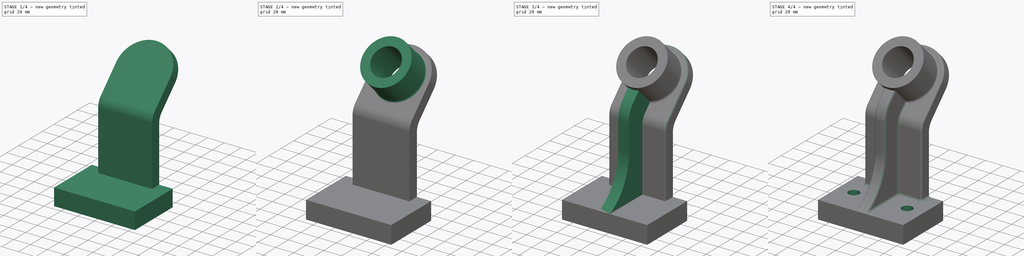
[diagram: build sequence overview — one tinted view per stage of 4, left to right]
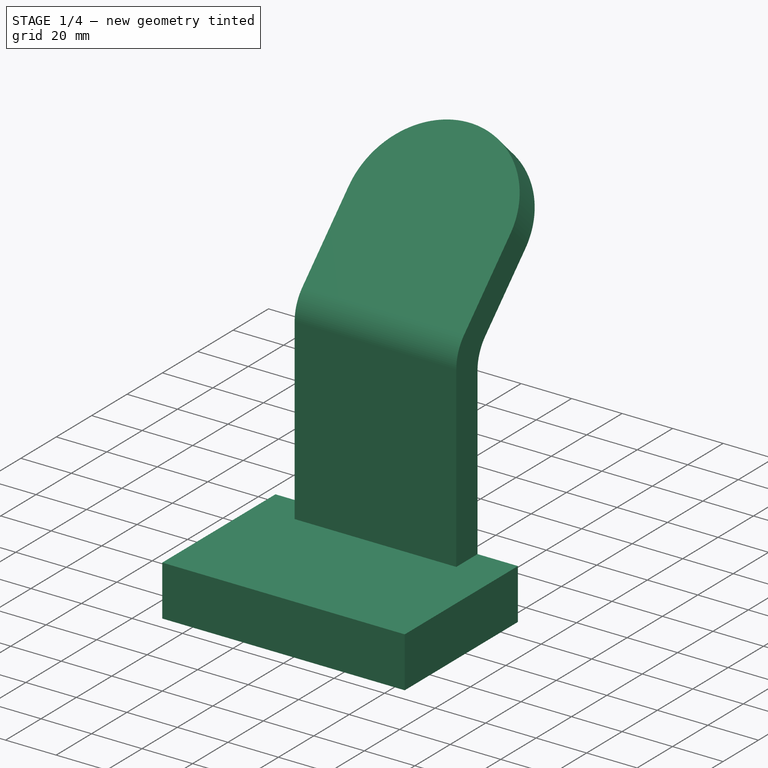
[diagram: stage 1 of 4 — iso view after this stage's code; geometry added in this stage tinted green]
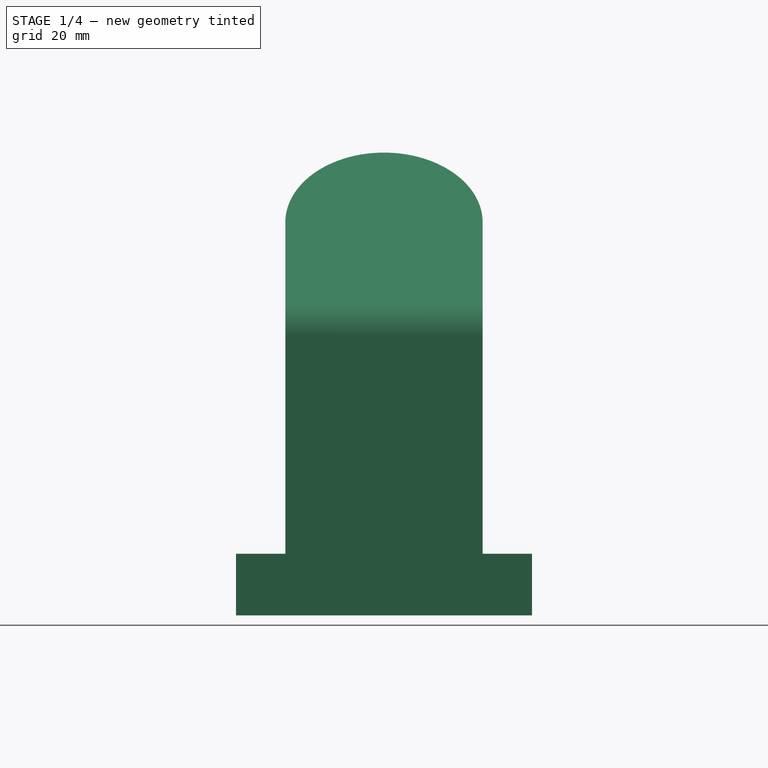
[diagram: stage 1 of 4 — front view after this stage's code; geometry added in this stage tinted green]
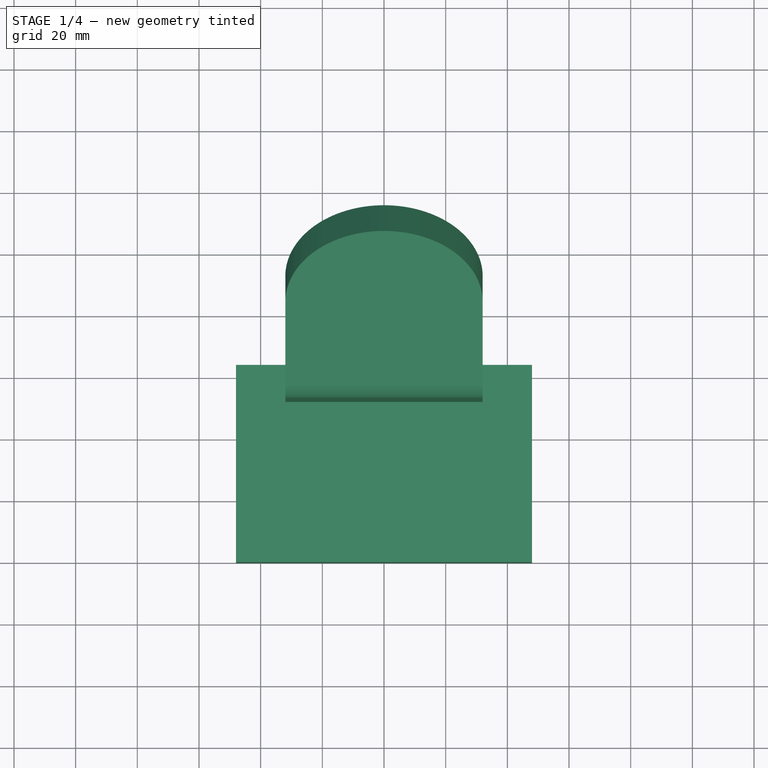
[diagram: stage 1 of 4 — top view after this stage's code; geometry added in this stage tinted green]
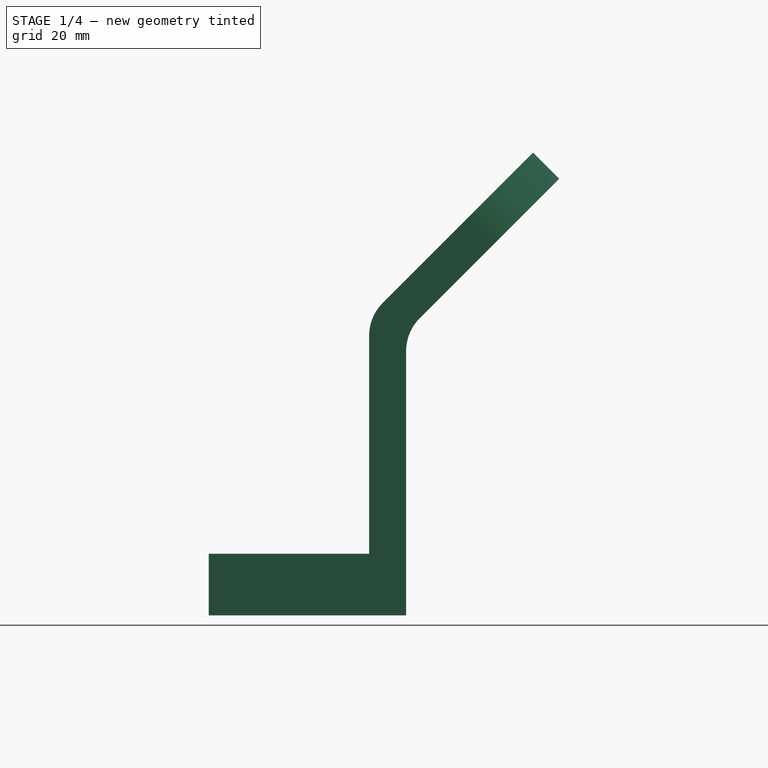
[diagram: stage 1 of 4 — right view after this stage's code; geometry added in this stage tinted green]
FCSTD DOCUMENT  (FreeCAD 1.0R39319 (Git))
Label: Mania2001
License: All rights reserved
LicenseURL: https://en.wikipedia.org/wiki/All_rights_reserved
objects: Sketcher::SketchObject×7, PartDesign::Pad×4, PartDesign::Fillet×4, PartDesign::Pocket×3, PartDesign::Body×1
note: 48 computed .brp shape members not serialized (recipe doc carries the construction recipe); baked Part::Feature solids carry a one-line shape summary decoded from their .brp

FEATURE [Sketcher::SketchObject] Sketch
  ArcFitTolerance = 1e-06
  AttachmentSupport = -> [Origin]
  FullyConstrained = true
  MakeInternals = false
  MapMode = 5
  sketch-geometry (4):
    g0: LineSegment StartX=-48 StartY=64 StartZ=0 EndX=-48 EndY=0 EndZ=0
    g1: LineSegment StartX=-48 StartY=0 StartZ=0 EndX=48 EndY=0 EndZ=0
    g2: LineSegment StartX=48 StartY=0 StartZ=0 EndX=48 EndY=64 EndZ=0
    g3: LineSegment StartX=48 StartY=64 StartZ=0 EndX=-48 EndY=64 EndZ=0
  constraints (11):
    c: Coincident(g0,g1)
    c: Coincident(g1,g2)
    c: Coincident(g2,g3)
    c: Coincident(g3,g0)
    c: Vertical(g0)
    c: Vertical(g2)
    c: Horizontal(g1)
    c: PointOnObject(g1,g-1)
    c: DistanceX(g3,g3) = 96
    c: DistanceY(g0,g0) = 64
    c: Symmetric(g2,g0,g-2)
FEATURE [PartDesign::Pad] Pad
  Direction = (0,0,1)
  Length = 20
  Length2 = 10
  Profile = -> Sketch
  ReferenceAxis = -> Sketch [N_Axis]
  Refine = true
  Suppressed = false
  Type = 0
FEATURE [Sketcher::SketchObject] Sketch001
  ArcFitTolerance = 1e-06
  AttachmentSupport = -> [YZ_Plane]
  ExternalGeometry = -> [Pad]
  FullyConstrained = true
  MakeInternals = false
  MapMode = 5
  Placement = pos=(0,0,0) rot=(0.57735,0.57735,0.57735;2.0944rad)
  sketch-geometry (11):
    g0: LineSegment StartX=64 StartY=0 StartZ=0 EndX=64 EndY=85.7451 EndZ=0
    g1: LineSegment StartX=52 StartY=90.7157 StartZ=0 EndX=52 EndY=0 EndZ=0
    g2: LineSegment StartX=52 StartY=0 StartZ=0 EndX=64 EndY=0 EndZ=0
    g3: LineSegment StartX=68.3934 StartY=96.3517 StartZ=0 EndX=113.648 EndY=141.607 EndZ=0
    g4: LineSegment StartX=113.648 StartY=141.607 StartZ=0 EndX=105.163 EndY=150.092 EndZ=0
    g5: LineSegment StartX=105.163 StartY=150.092 StartZ=0 EndX=56.3934 EndY=101.322 EndZ=0
    g6: ArcOfCircle CenterX=79 CenterY=85.7451 CenterZ=0 NormalX=0 NormalY=0 NormalZ=1 AngleXU=0 Radius=15 StartAngle=2.35619 EndAngle=3.14159
    g7: GeomPoint [constr] X=64 Y=91.9583 Z=0
    g8: ArcOfCircle CenterX=67 CenterY=90.7157 CenterZ=0 NormalX=0 NormalY=0 NormalZ=1 AngleXU=0 Radius=15 StartAngle=2.35619 EndAngle=3.14159
    g9: GeomPoint [constr] X=52 Y=96.9289 Z=0
    g10: LineSegment [constr] StartX=91.0208 StartY=118.979 StartZ=0 EndX=64 EndY=146 EndZ=0
  constraints (28):
    c: Coincident(g1,g2)
    c: Coincident(g2,g0)
    c: Vertical(g0)
    c: Vertical(g1)
    c: Horizontal(g2)
    c: Coincident(g0,g-4)
    c: DistanceX(g2,g2) = 12
    c: Coincident(g3,g4)
    c: Coincident(g4,g5)
    c: Perpendicular(g4,g3)
    c: Parallel(g3,g5)
    c: Distance(g4,g4) = 12
    c: PointOnObject(g7,g3)
    c: PointOnObject(g7,g0)
    c: Tangent(g3,g6) = 1.5708
    c: Tangent(g0,g6) = 1.5708
    c: PointOnObject(g9,g5)
    c: PointOnObject(g9,g1)
    c: Tangent(g5,g8) = -1.5708
    c: Tangent(g1,g8) = -1.5708
    c: Equal(g8,g6)
    c: Radius(g6) = 15
    c: Angle(g1,g3) = 2.35619
    c: Angle(g10,g-1) = 0.785399
    c: Symmetric(g3,g3,g10)
    c: DistanceY(g-1,g10) = 146
    c: Distance(g10,g3) = 32
    c: Distance(g10,g-2) = 64
FEATURE [PartDesign::Pad] Pad001
  BaseFeature = -> Pad
  Direction = (1,0,0)
  Length = 64
  Length2 = 10
  Midplane = true
  Profile = -> Sketch001
  ReferenceAxis = -> Sketch001 [N_Axis]
  Refine = true
  Suppressed = false
  Type = 0
FEATURE [Sketcher::SketchObject] Sketch002
  ArcFitTolerance = 1e-06
  AttachmentSupport = -> [Pad001]
  ExternalGeometry = -> [Pad001]
  FullyConstrained = false
  MakeInternals = false
  MapMode = 5
  Placement = pos=(0,-22.4645,22.4645) rot=(1,0,0;0.785398rad)
  sketch-geometry (4):
    g0: ArcOfCircle CenterX=1.99e-13 CenterY=148.492 CenterZ=0 NormalX=0 NormalY=0 NormalZ=1 AngleXU=0 Radius=32 StartAngle=6.28319 EndAngle=9.42478
    g1: LineSegment StartX=32 StartY=148.492 StartZ=0 EndX=32 EndY=180.492 EndZ=0
    g2: LineSegment StartX=32 StartY=180.492 StartZ=0 EndX=-32 EndY=180.492 EndZ=0
    g3: LineSegment StartX=-32 StartY=180.492 StartZ=0 EndX=-32 EndY=148.492 EndZ=0
  constraints (10):
    c: PointOnObject(g0,g-3)
    c: PointOnObject(g0,g-4)
    c: Radius(g0) = 32
    c: Tangent(g0,g-5)
    c: Coincident(g1,g2)
    c: Coincident(g2,g3)
    c: Coincident(g1,g-5)
    c: Coincident(g1,g0)
    c: Coincident(g3,g0)
    c: Coincident(g2,g-5)
FEATURE [PartDesign::Pocket] Pocket
  BaseFeature = -> Pad001
  Direction = (0,0.707107,-0.707107)
  Length = 5
  Length2 = 5
  Profile = -> Sketch002
  ReferenceAxis = -> Sketch002 [N_Axis]
  Refine = true
  Suppressed = false
  Type = 1
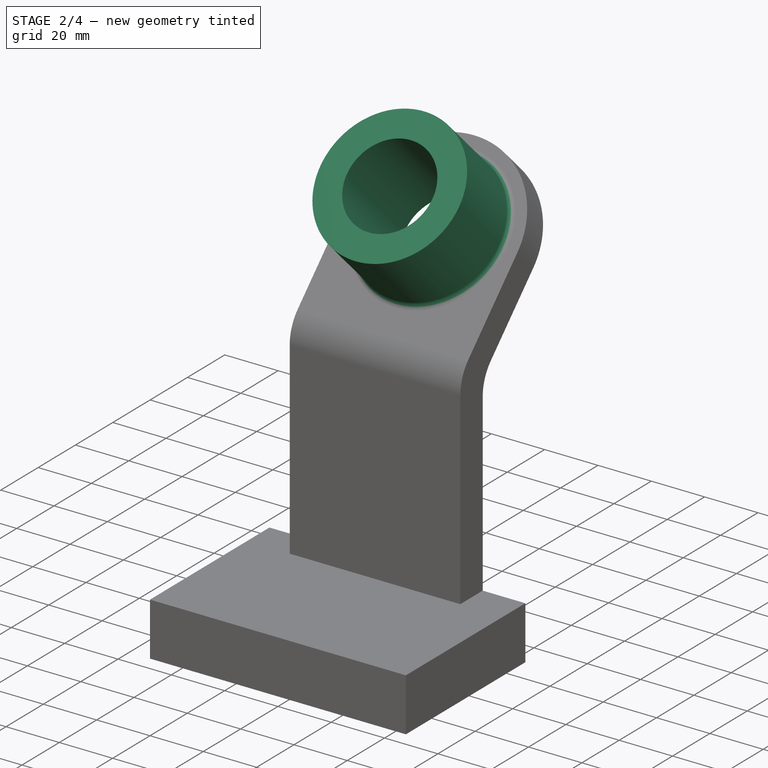
[diagram: stage 2 of 4 — iso view after this stage's code; geometry added in this stage tinted green]
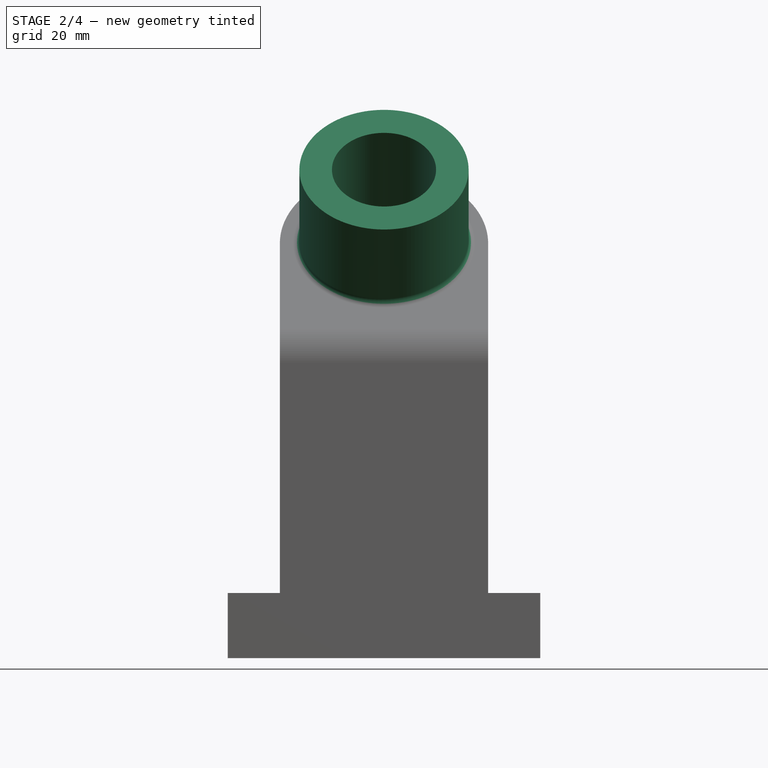
[diagram: stage 2 of 4 — front view after this stage's code; geometry added in this stage tinted green]
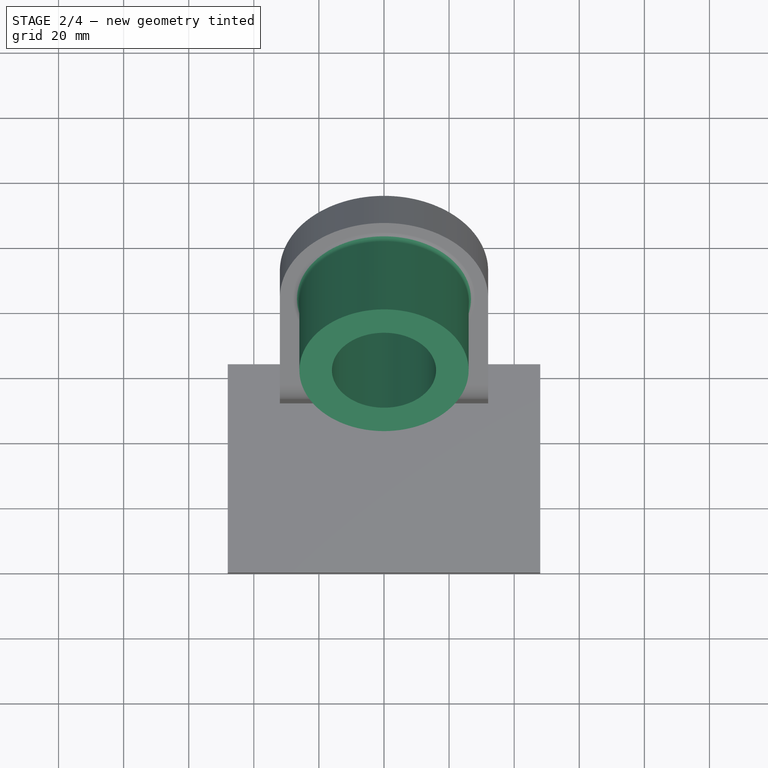
[diagram: stage 2 of 4 — top view after this stage's code; geometry added in this stage tinted green]
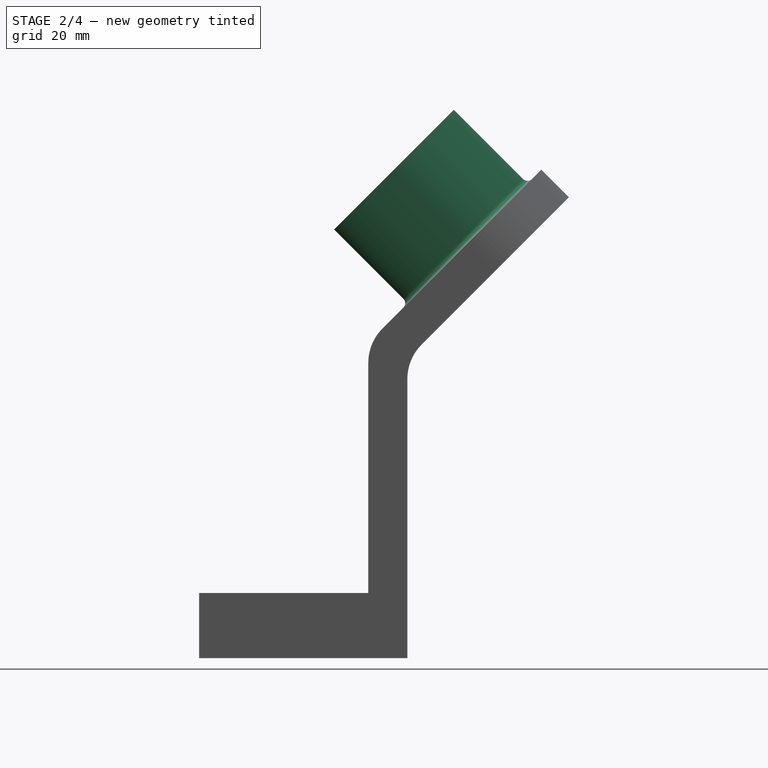
[diagram: stage 2 of 4 — right view after this stage's code; geometry added in this stage tinted green]
FEATURE [Sketcher::SketchObject] Sketch003
  ArcFitTolerance = 1e-06
  AttachmentSupport = -> [Pocket]
  ExternalGeometry = -> [Pocket]
  FullyConstrained = true
  MakeInternals = false
  MapMode = 5
  Placement = pos=(0,-22.4645,22.4645) rot=(1,0,0;0.785398rad)
  sketch-geometry (1):
    g0: Circle CenterX=1.99e-13 CenterY=148.492 CenterZ=0 NormalX=0 NormalY=0 NormalZ=1 AngleXU=0 Radius=26
  constraints (2):
    c: Diameter(g0) = 52
    c: Coincident(g0,g-3)
FEATURE [PartDesign::Pad] Pad002
  BaseFeature = -> Pocket
  Direction = (0,-0.707107,0.707107)
  Length = 32
  Length2 = 10
  Profile = -> Sketch003
  ReferenceAxis = -> Sketch003 [N_Axis]
  Refine = true
  Suppressed = false
  Type = 0
FEATURE [PartDesign::Fillet] Fillet
  Base = -> Pad002 [Edge37]
  BaseFeature = -> Pad002
  Radius = 2
  Refine = true
  SupportTransform = false
  Suppressed = false
  UseAllEdges = false
FEATURE [Sketcher::SketchObject] Sketch004
  ArcFitTolerance = 1e-06
  AttachmentSupport = -> [Fillet]
  ExternalGeometry = -> [Fillet]
  FullyConstrained = true
  MakeInternals = false
  MapMode = 5
  Placement = pos=(0,-45.0919,45.0919) rot=(1,0,0;0.785398rad)
  sketch-geometry (1):
    g0: Circle CenterX=1.99e-13 CenterY=148.492 CenterZ=0 NormalX=0 NormalY=0 NormalZ=1 AngleXU=0 Radius=16
  constraints (2):
    c: Diameter(g0) = 32
    c: Coincident(g0,g-3)
FEATURE [PartDesign::Pocket] Pocket001
  BaseFeature = -> Fillet
  Direction = (0,0.707107,-0.707107)
  Length = 5
  Length2 = 5
  Profile = -> Sketch004
  ReferenceAxis = -> Sketch004 [N_Axis]
  Refine = true
  Suppressed = false
  Type = 1
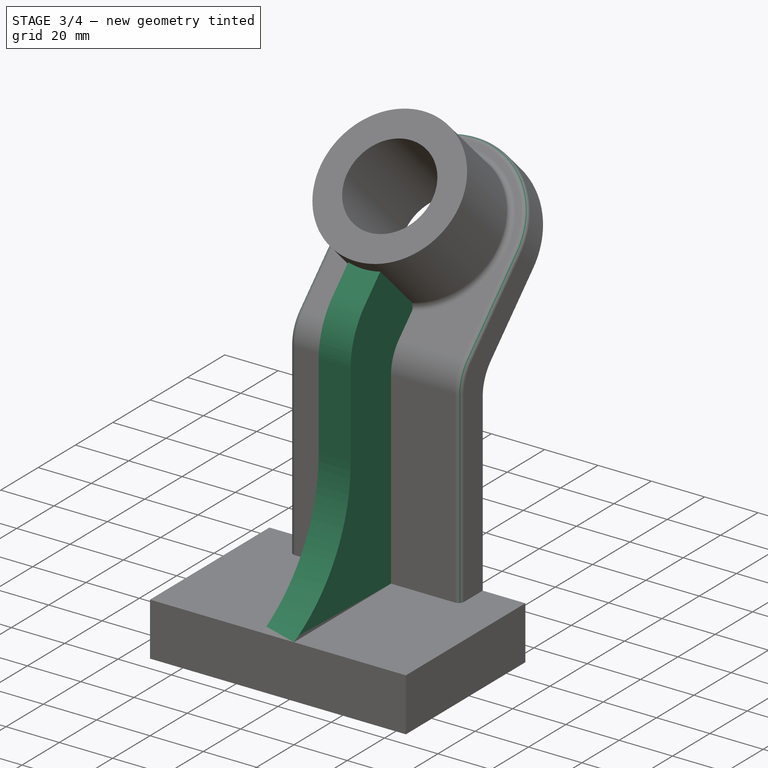
[diagram: stage 3 of 4 — iso view after this stage's code; geometry added in this stage tinted green]
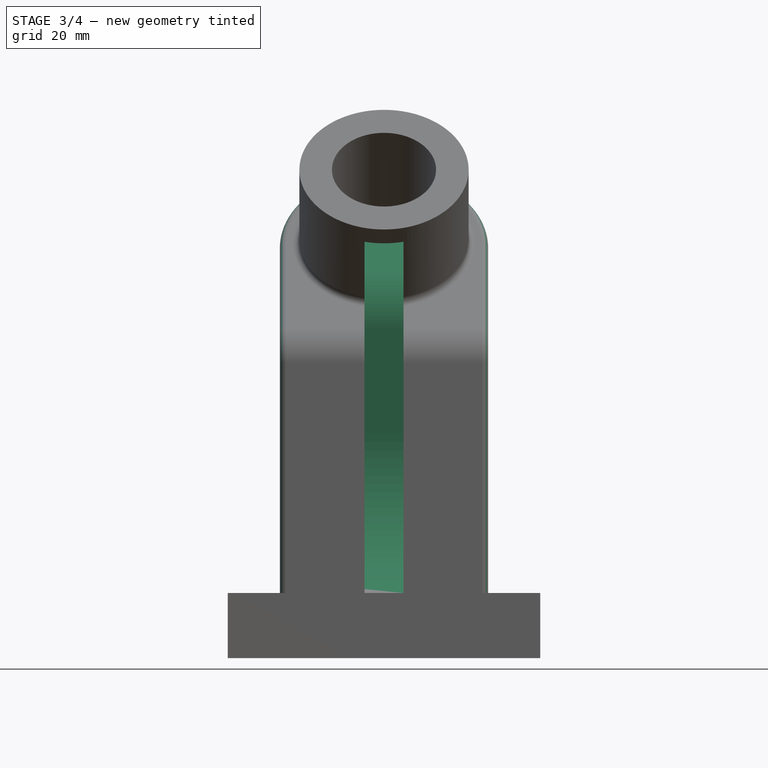
[diagram: stage 3 of 4 — front view after this stage's code; geometry added in this stage tinted green]
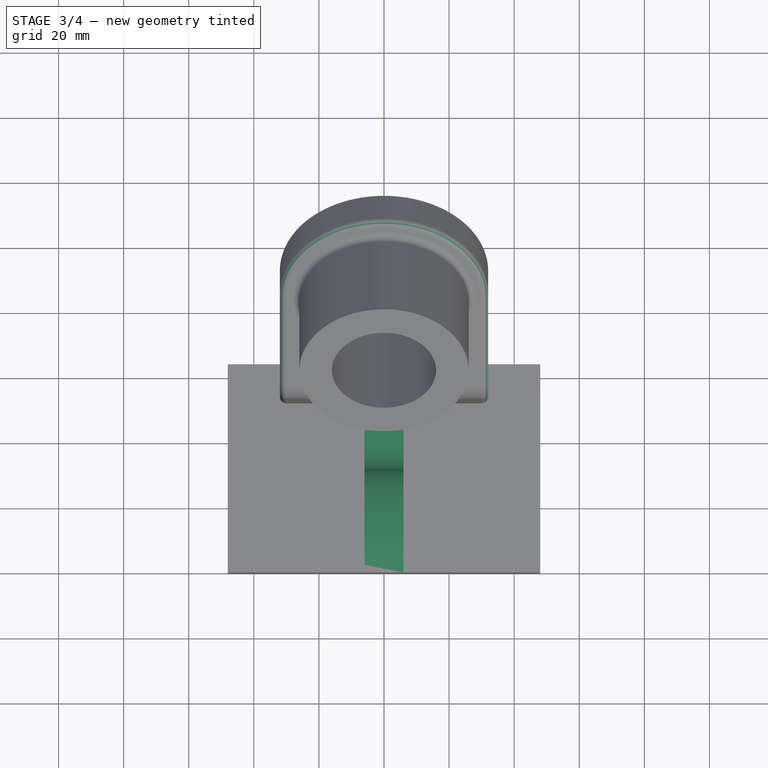
[diagram: stage 3 of 4 — top view after this stage's code; geometry added in this stage tinted green]
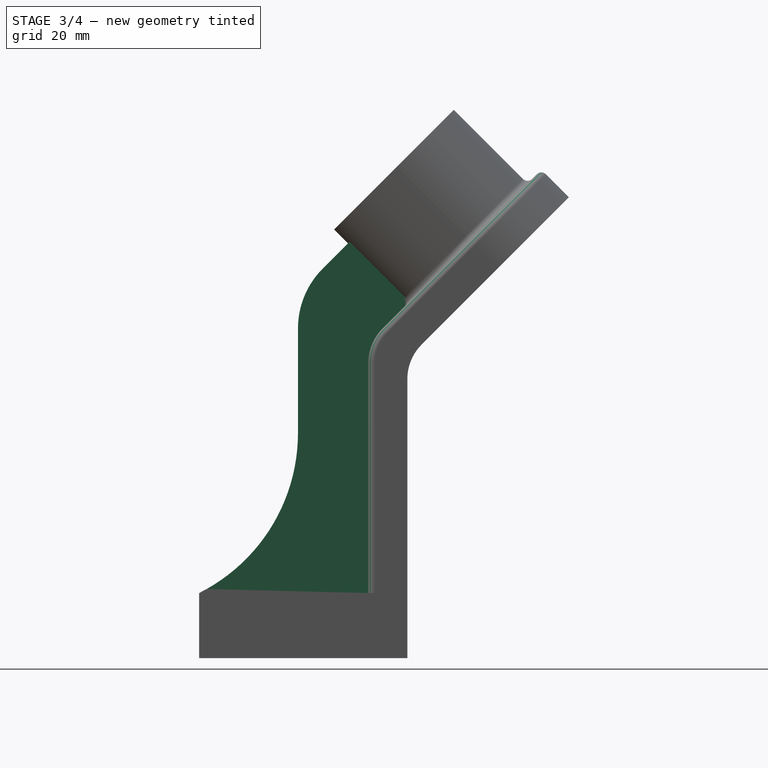
[diagram: stage 3 of 4 — right view after this stage's code; geometry added in this stage tinted green]
FEATURE [PartDesign::Fillet] Fillet001
  Base = -> Pocket001 [Edge16]
  BaseFeature = -> Pocket001
  Radius = 2
  Refine = true
  SupportTransform = false
  Suppressed = false
  UseAllEdges = false
FEATURE [Sketcher::SketchObject] Sketch005
  ArcFitTolerance = 1e-06
  AttachmentSupport = -> [YZ_Plane]
  ExternalGeometry = -> [Fillet001]
  FullyConstrained = true
  MakeInternals = false
  MapMode = 5
  Placement = pos=(0,0,0) rot=(0.57735,0.57735,0.57735;2.0944rad)
  sketch-geometry (9):
    g0: ArcOfCircle CenterX=-24.6066 CenterY=69.1886 CenterZ=0 NormalX=0 NormalY=0 NormalZ=1 AngleXU=0 Radius=55 StartAngle=5.17624 EndAngle=6.28319
    g1: ArcOfCircle CenterX=56.3934 CenterY=101.322 CenterZ=0 NormalX=0 NormalY=0 NormalZ=1 AngleXU=0 Radius=26 StartAngle=2.35619 EndAngle=3.14159
    g2: LineSegment StartX=46.4939 StartY=128.192 StartZ=0 EndX=64.8787 EndY=109.808 EndZ=0
    g3: LineSegment StartX=64.8787 StartY=109.808 StartZ=0 EndX=56.3934 EndY=101.322 EndZ=0
    g4: ArcOfCircle CenterX=67 CenterY=90.7157 CenterZ=0 NormalX=0 NormalY=0 NormalZ=1 AngleXU=0 Radius=15 StartAngle=2.35619 EndAngle=3.14159
    g5: LineSegment StartX=52 StartY=90.7157 StartZ=0 EndX=52 EndY=20 EndZ=0
    g6: LineSegment StartX=52 StartY=20 StartZ=0 EndX=7.1e-15 EndY=20 EndZ=0
    g7: LineSegment StartX=30.3934 StartY=101.322 StartZ=0 EndX=30.3934 EndY=69.1886 EndZ=0
    g8: LineSegment StartX=46.4939 StartY=128.192 StartZ=0 EndX=38.0086 EndY=119.707 EndZ=0
  constraints (21):
    c: Coincident(g0,g-4)
    c: Radius(g0) = 55
    c: PointOnObject(g2,g-5)
    c: Coincident(g2,g3)
    c: Coincident(g3,g-7)
    c: Tangent(g3,g4) = -1.5708
    c: Coincident(g4,g-7)
    c: Tangent(g4,g5) = -1.5708
    c: Coincident(g5,g6)
    c: Coincident(g6,g0)
    c: Horizontal(g6)
    c: Coincident(g1,g3)
    c: Perpendicular(g-5,g2)
    c: Vertical(g7)
    c: Coincident(g8,g2)
    c: Perpendicular(g8,g2)
    c: Distance(g3,g8) = 26
    c: Tangent(g8,g1) = -1.5708
    c: Tangent(g7,g1) = -1.5708
    c: Tangent(g7,g0) = 1.5708
    c: Distance(g8,g8) = 12
FEATURE [PartDesign::Pad] Pad003
  BaseFeature = -> Fillet001
  Direction = (1,0,0)
  Length = 12
  Length2 = 10
  Midplane = true
  Profile = -> Sketch005
  ReferenceAxis = -> Sketch005 [N_Axis]
  Refine = true
  Suppressed = false
  Type = 0
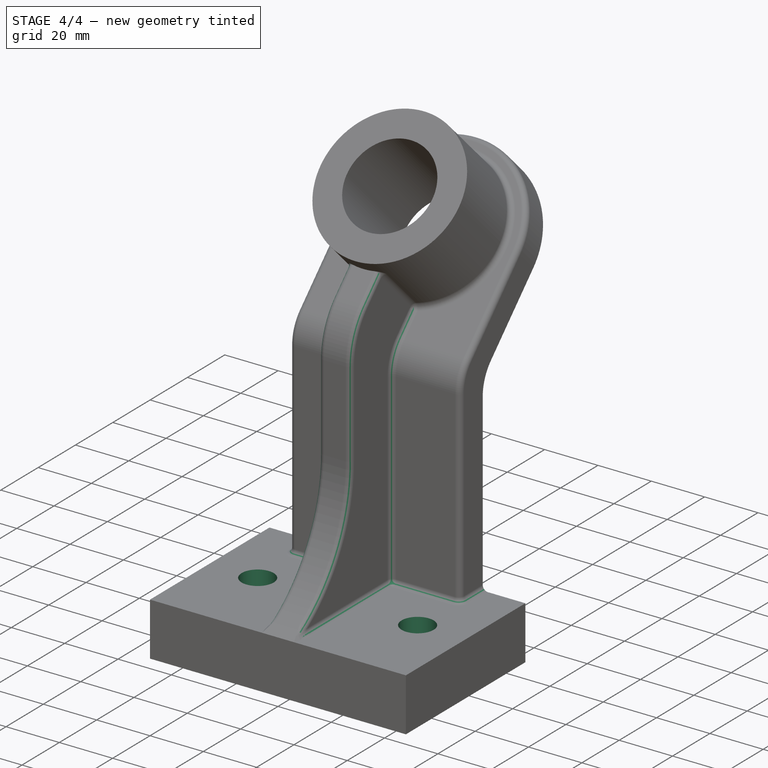
[diagram: stage 4 of 4 — iso view after this stage's code; geometry added in this stage tinted green]
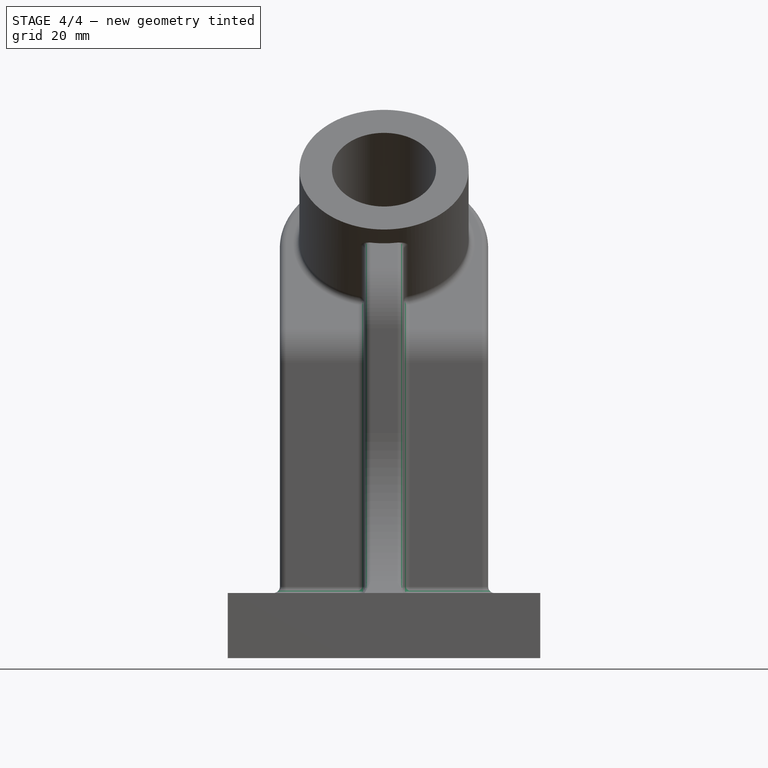
[diagram: stage 4 of 4 — front view after this stage's code; geometry added in this stage tinted green]
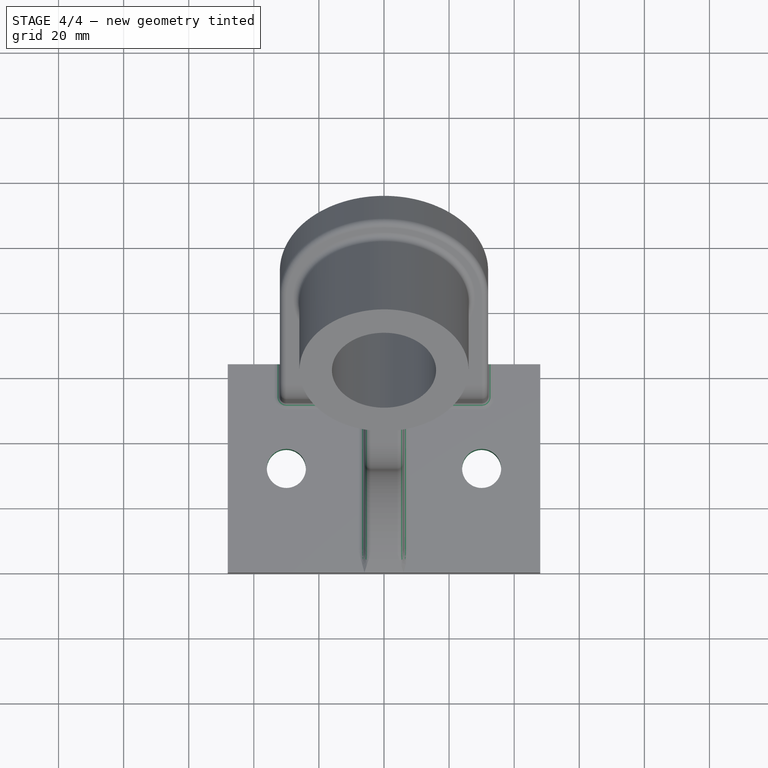
[diagram: stage 4 of 4 — top view after this stage's code; geometry added in this stage tinted green]
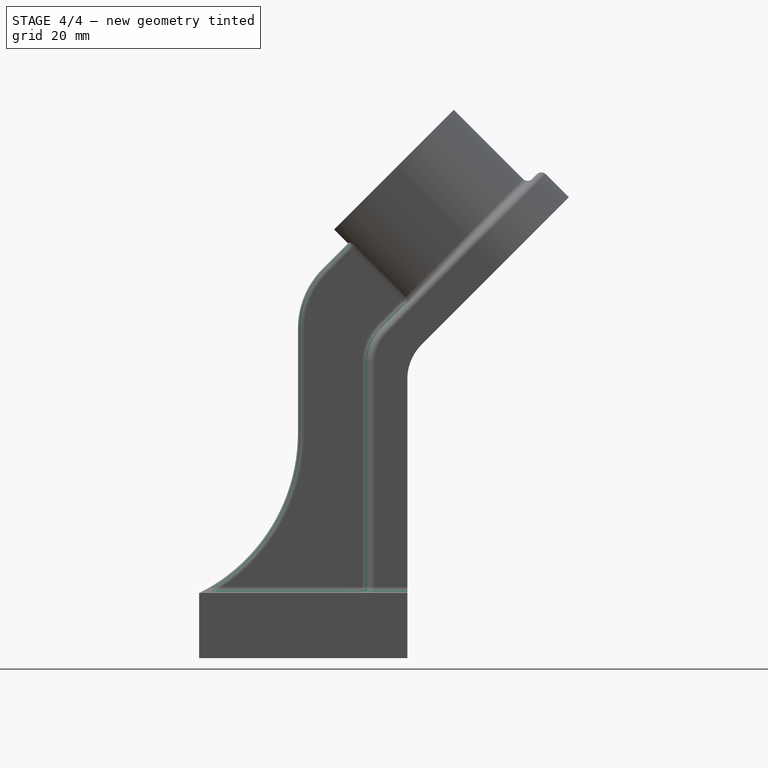
[diagram: stage 4 of 4 — right view after this stage's code; geometry added in this stage tinted green]
FEATURE [Sketcher::SketchObject] Sketch006
  ArcFitTolerance = 1e-06
  AttachmentSupport = -> [XY_Plane]
  FullyConstrained = true
  MakeInternals = false
  MapMode = 5
  sketch-geometry (2):
    g0: Circle CenterX=-30 CenterY=32 CenterZ=0 NormalX=0 NormalY=0 NormalZ=1 AngleXU=0 Radius=6
    g1: Circle CenterX=30 CenterY=32 CenterZ=0 NormalX=0 NormalY=0 NormalZ=1 AngleXU=0 Radius=6
  constraints (5):
    c: Diameter(g0) = 12
    c: Equal(g0,g1)
    c: Symmetric(g0,g1,g-2)
    c: DistanceX(g0,g1) = 60
    c: DistanceY(g-1,g0) = 32
FEATURE [PartDesign::Pocket] Pocket002
  BaseFeature = -> Pad003
  Direction = (0,0,-1)
  Length = 5
  Length2 = 5
  Profile = -> Sketch006
  ReferenceAxis = -> Sketch006 [N_Axis]
  Refine = true
  Reversed = true
  Suppressed = false
  Type = 1
FEATURE [PartDesign::Fillet] Fillet002
  Base = -> Pocket002 [Face6,Edge63]
  BaseFeature = -> Pocket002
  Radius = 2
  Refine = true
  SupportTransform = false
  Suppressed = false
  UseAllEdges = false
FEATURE [PartDesign::Fillet] Fillet003
  Base = -> Fillet002 [Face6,Edge61]
  BaseFeature = -> Fillet002
  Radius = 2
  Refine = true
  SupportTransform = false
  Suppressed = false
  UseAllEdges = false
FEATURE [PartDesign::Body] Body
  AllowCompound = false
  Group = -> [Sketch,Pad,Sketch001,Pad001,Sketch002,Pocket,Sketch003,Pad002,Fillet,Sketch004,Pocket001,Fillet001,Sketch005,Pad003,Sketch006,Pocket002,Fillet002,Fillet003]
  Origin = -> Origin
  Tip = -> Fillet003
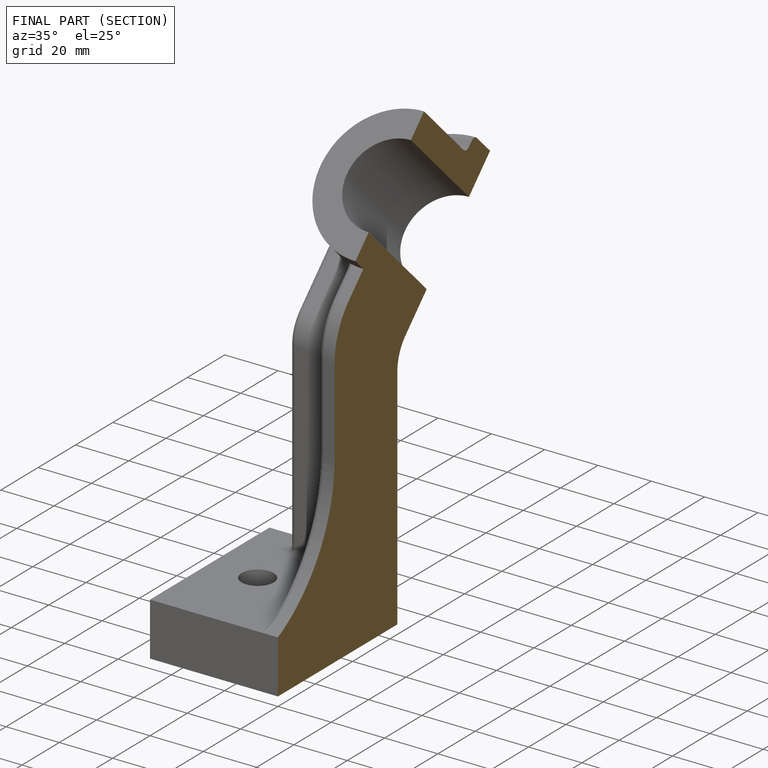
[diagram: finished part — half-section view (interior)]
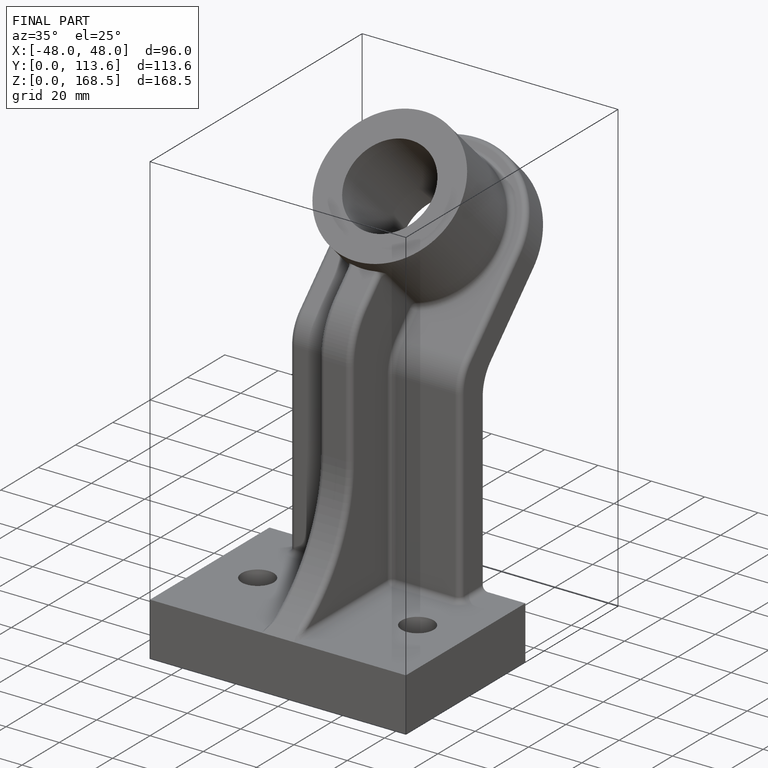
[diagram: finished part — iso view with bounding-box wireframe]
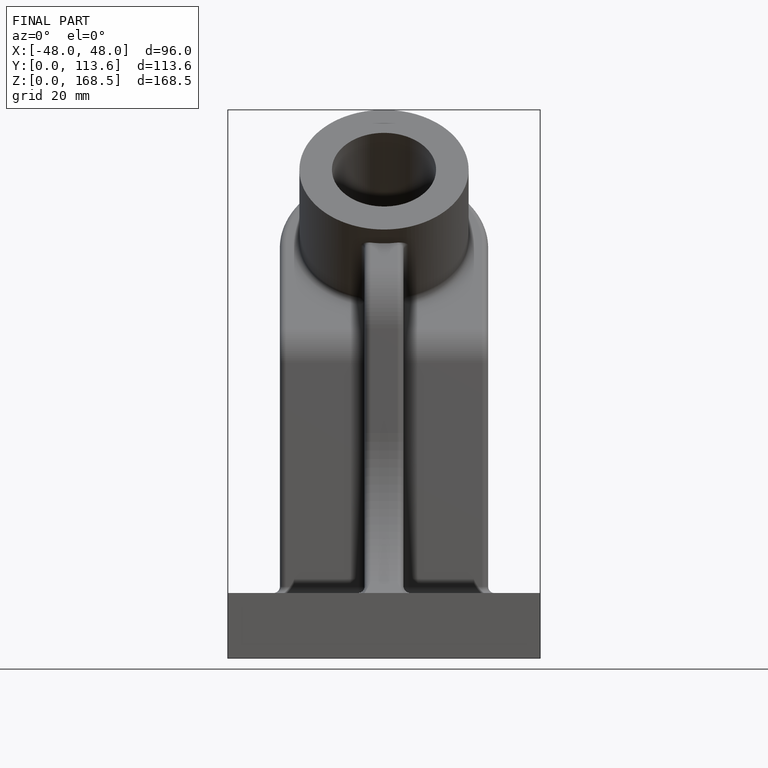
[diagram: finished part — front view with bounding-box wireframe]
